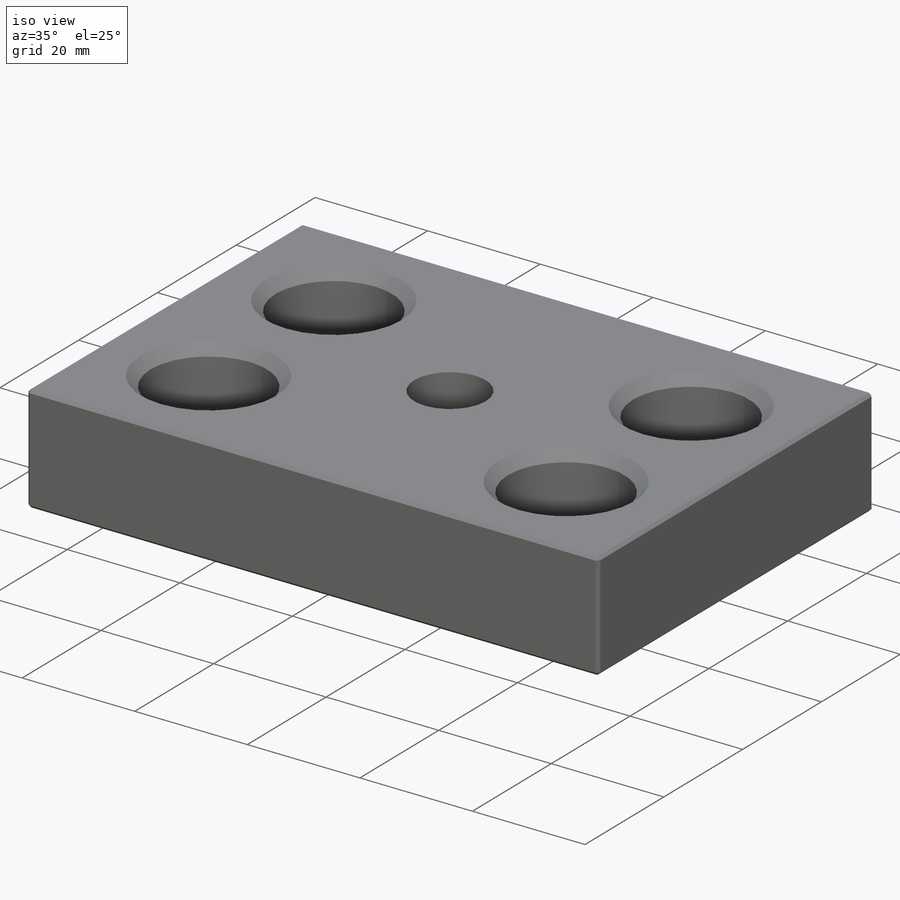
[diagram: iso view]
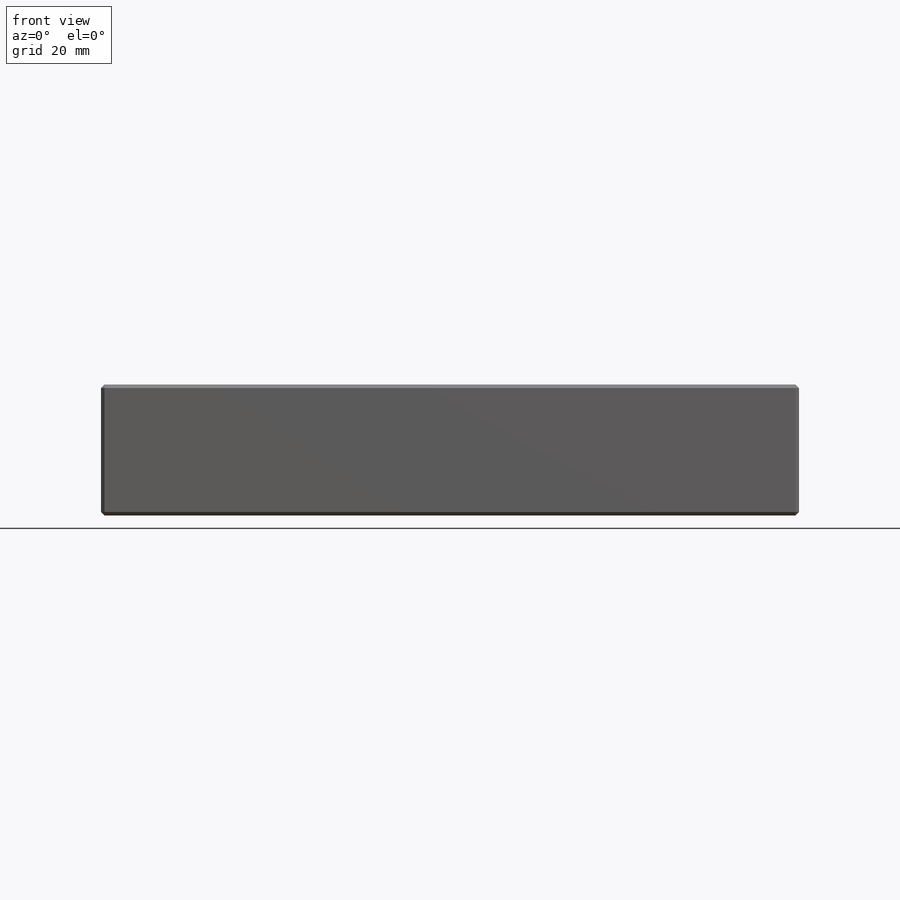
[diagram: front view]
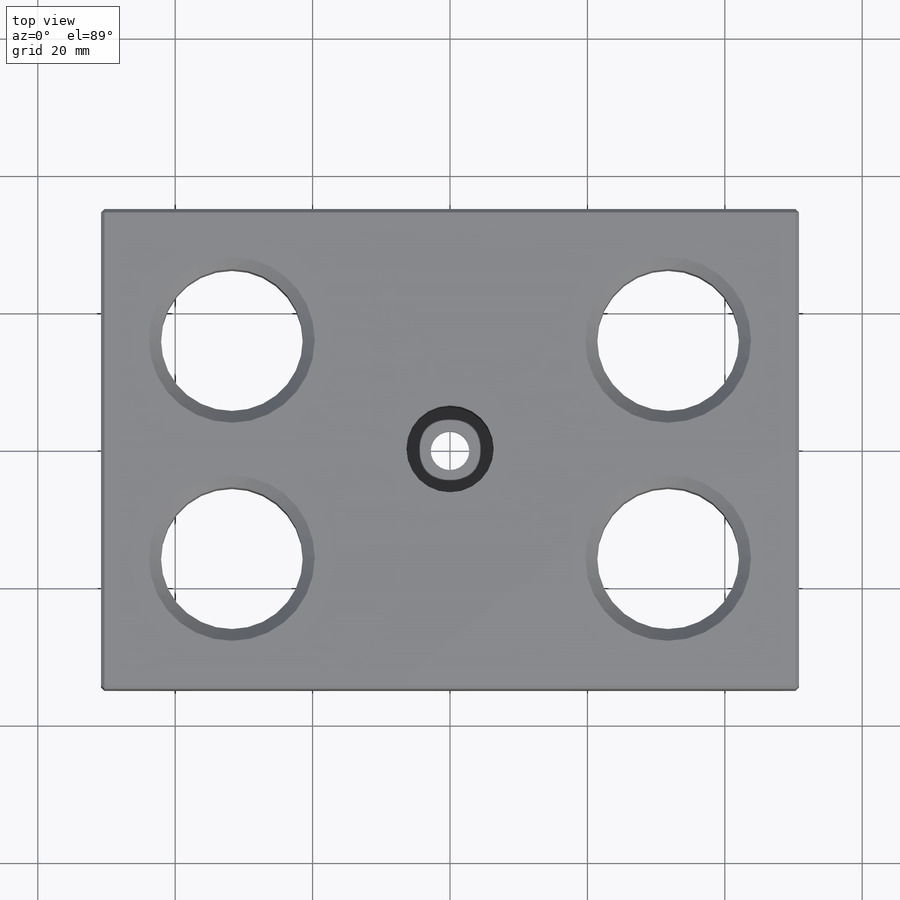
[diagram: top view]
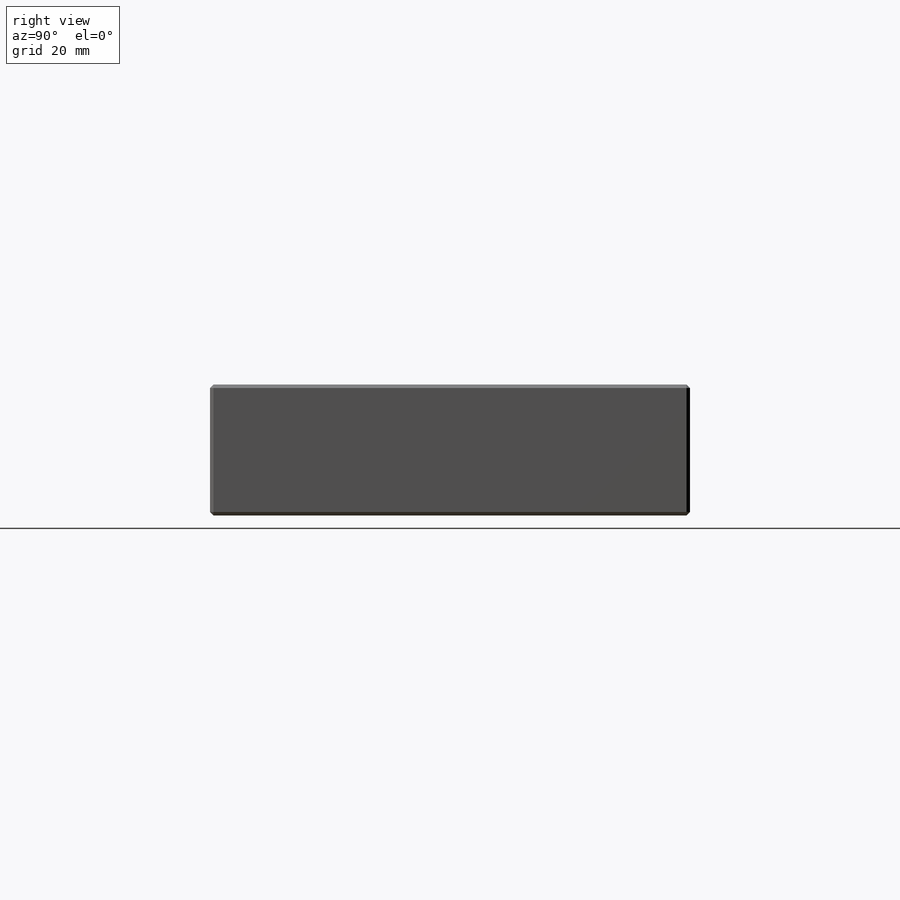
[diagram: right view]
SOLIDWORKS PART (.sldprt)
format: sldprt  version: not decoded by parser v0  size: 240,128 bytes
history: native  units: mm
features: sketch x5, hole x2, material x1, extrude x1, chamfer x1 + 1 further entry (+13 scaffold rows collapsed)
feature tree (24):
  scaffold x13  (default folders/planes/origin — collapsed)
  material  "PTFE"
  "Origin"  ID=-1
  sketch  "Sketch1"  dims[D1=101.6mm D2=69.85mm]
  extrude  "Extrude1"  Depth=19.05mm
  hole  "13/16 (0.8125) Diameter Hole1"  Diameter=20.6375mm Depth=19.05mm
  sketch  "Sketch4"  dims[D1=63.5mm D2=31.75mm]
  sketch  "Sketch3"  dims[hole-wizard template sketch: 46 standard entries collapsed; hole parameters kept: c15.Thru Hole Dia.=20.6375mm c15.Thru Hole Depth=19.05mm c15.Near C'Sink Dia.=24.13mm c15.D4=~3.666174mm c15.Near C'Sink Angle=90.0deg c15.Far C'Sink Dia.=24.13mm c15.D6=~9.919017mm c15.Far C'Sink Angle=90.0deg]
  hole  "CBORE for #10 Socket Head Cap Screw1"  Diameter=5.6134mm Depth=19.05mm
  sketch  "Sketch6"
  sketch  "Sketch5"  dims[hole-wizard template sketch: 42 standard entries collapsed; hole parameters kept: c12.Thru Hole Depth=19.05mm c12.C'Bore Dia.=12.7mm c12.C'Bore Depth=15.24mm]
  chamfer  "Chamfer1"  Distance=0.508mm Angle=45deg
decode coverage: 8 of 9 modeling features carry decoded parameters; 1 rows unclassified (native names shown)
note: ~ marks probable driven/reference dimensions
note: suppression state not decoded; provenance and decode notes live in map.json
